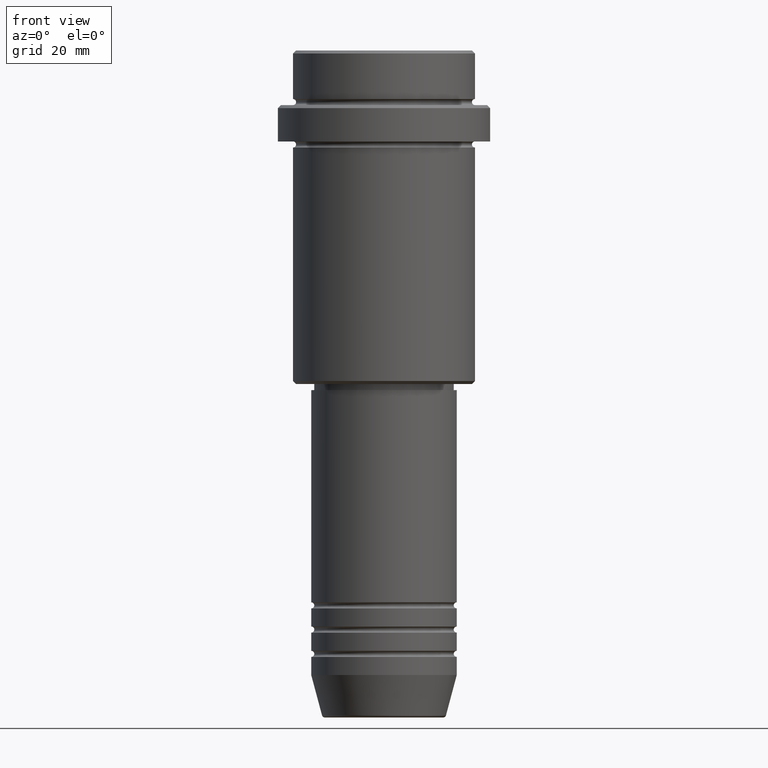
[diagram: clean part render]
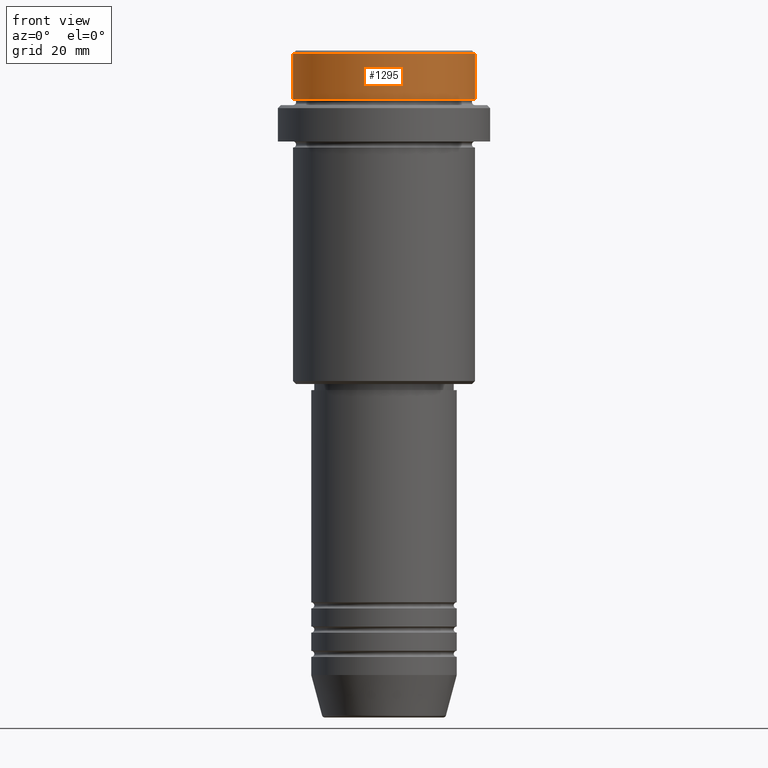
[diagram: same view with one face highlighted and labeled with its STEP entity id]
A machine part, front view. The second image highlights one B-rep face of the part: STEP entity #1295.
In plain terms, the highlighted cylindrical surface (partial cylindrical patch) has radius 15 mm, axis along (-0, -0, 1).
Its self-contained STEP definition (entity closure, byte-faithful):
#9 = DIRECTION ( 'NONE',  ( -0.000000000000000000, -0.000000000000000000, 1.000000000000000000 ) ) ;
#24 = VECTOR ( 'NONE', #584, 1000.000000000000000 ) ;
#88 = VERTEX_POINT ( 'NONE', #934 ) ;
#93 = FACE_OUTER_BOUND ( 'NONE', #336, .T. ) ;
#112 = CARTESIAN_POINT ( 'NONE',  ( 0.000000000000000000, 0.000000000000000000, 0.000000000000000000 ) ) ;
#223 = AXIS2_PLACEMENT_3D ( 'NONE', #112, #226, #1298 ) ;
#226 = DIRECTION ( 'NONE',  ( -0.000000000000000000, -0.000000000000000000, 1.000000000000000000 ) ) ;
#263 = LINE ( 'NONE', #479, #24 ) ;
#288 = CARTESIAN_POINT ( 'NONE',  ( 0.000000000000000000, 0.000000000000000000, -7.999999999999998224 ) ) ;
#330 = CYLINDRICAL_SURFACE ( 'NONE', #223, 15.00000000000000000 ) ;
#336 = EDGE_LOOP ( 'NONE', ( #1204, #948, #1369, #805 ) ) ;
#442 = EDGE_CURVE ( 'NONE', #1099, #869, #586, .T. ) ;
#445 = CARTESIAN_POINT ( 'NONE',  ( 15.00000000000000000, 0.000000000000000000, -7.999999999999998224 ) ) ;
#479 = CARTESIAN_POINT ( 'NONE',  ( 15.00000000000000000, 0.000000000000000000, 0.000000000000000000 ) ) ;
#485 = DIRECTION ( 'NONE',  ( -0.000000000000000000, -0.000000000000000000, 1.000000000000000000 ) ) ;
#584 = DIRECTION ( 'NONE',  ( -0.000000000000000000, -0.000000000000000000, 1.000000000000000000 ) ) ;
#586 = CIRCLE ( 'NONE', #1384, 15.00000000000000000 ) ;
#594 = EDGE_CURVE ( 'NONE', #88, #1326, #1063, .T. ) ;
#805 = ORIENTED_EDGE ( 'NONE', *, *, #442, .T. ) ;
#869 = VERTEX_POINT ( 'NONE', #906 ) ;
#875 = CARTESIAN_POINT ( 'NONE',  ( 15.00000000000000000, 0.000000000000000000, -0.5000000000000386358 ) ) ;
#906 = CARTESIAN_POINT ( 'NONE',  ( -15.00000000000000000, 1.836970198721029589E-15, -0.5000000000000386358 ) ) ;
#934 = CARTESIAN_POINT ( 'NONE',  ( -15.00000000000000000, 1.836970198721029589E-15, -7.999999999999998224 ) ) ;
#935 = DIRECTION ( 'NONE',  ( 0.000000000000000000, 0.000000000000000000, -1.000000000000000000 ) ) ;
#948 = ORIENTED_EDGE ( 'NONE', *, *, #594, .T. ) ;
#974 = AXIS2_PLACEMENT_3D ( 'NONE', #288, #485, #1024 ) ;
#987 = LINE ( 'NONE', #1210, #1318 ) ;
#1024 = DIRECTION ( 'NONE',  ( 1.000000000000000000, 0.000000000000000000, 0.000000000000000000 ) ) ;
#1063 = CIRCLE ( 'NONE', #974, 15.00000000000000000 ) ;
#1095 = EDGE_CURVE ( 'NONE', #88, #869, #987, .T. ) ;
#1099 = VERTEX_POINT ( 'NONE', #875 ) ;
#1158 = CARTESIAN_POINT ( 'NONE',  ( 0.000000000000000000, 0.000000000000000000, -0.5000000000000386358 ) ) ;
#1204 = ORIENTED_EDGE ( 'NONE', *, *, #1095, .F. ) ;
#1210 = CARTESIAN_POINT ( 'NONE',  ( -15.00000000000000000, 1.836970198721029589E-15, 0.000000000000000000 ) ) ;
#1211 = EDGE_CURVE ( 'NONE', #1326, #1099, #263, .T. ) ;
#1295 = ADVANCED_FACE ( 'NONE', ( #93 ), #330, .T. ) ;
#1298 = DIRECTION ( 'NONE',  ( 1.000000000000000000, 0.000000000000000000, 0.000000000000000000 ) ) ;
#1318 = VECTOR ( 'NONE', #9, 1000.000000000000000 ) ;
#1326 = VERTEX_POINT ( 'NONE', #445 ) ;
#1369 = ORIENTED_EDGE ( 'NONE', *, *, #1211, .T. ) ;
#1384 = AXIS2_PLACEMENT_3D ( 'NONE', #1158, #935, #1397 ) ;
#1397 = DIRECTION ( 'NONE',  ( 1.000000000000000000, 0.000000000000000000, 0.000000000000000000 ) ) ;